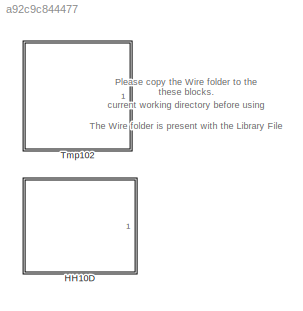
MODEL slx_a92c9c844477
KIND library
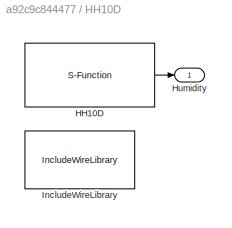
BLOCK [SubSystem] HH10D
  Ports = [0, 1]
  RequestExecContextInheritance = off
BLOCK [S-Function] HH10D/HH10D
  EnableBusSupport = off
  FunctionName = HH10D
  InitFcn = try, set_param(gcb,'FunctionName','HH10D'), end
  OpenFcn = sfunctionwizard(gcbh)
  Parameters = int8(1),1.2
  Ports = [0, 1]
  PreSaveFcn = try, set_param(gcb,'FunctionName','HH10D'), end
  SFunctionModules = HH10D_wrapper
BLOCK [Outport] HH10D/Humidity
  IconDisplay = Port number
BLOCK [Reference] HH10D/IncludeWireLibrary  REF=FunWithArduinoLib/Tmp102/IncludeWireLibrary
  Ports = []
  SourceBlock = FunWithArduinoLib/Tmp102/IncludeWireLibrary
  SourceType = S-Function Builder
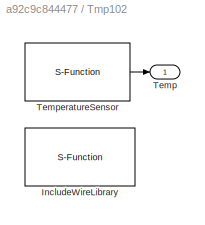
BLOCK [SubSystem] Tmp102
  Ports = [0, 1]
  RequestExecContextInheritance = off
BLOCK [S-Function] Tmp102/IncludeWireLibrary
  EnableBusSupport = off
  FunctionName = IncludeWireLib
  InitFcn = try, set_param(gcb,'FunctionName','IncludeWireLib'), end
  OpenFcn = sfunctionwizard(gcbh)
  Ports = []
  PreSaveFcn = try, set_param(gcb,'FunctionName','IncludeWireLib'), end
  SFunctionModules = IncludeWireLib_wrapper
BLOCK [Outport] Tmp102/Temp
  IconDisplay = Port number
BLOCK [S-Function] Tmp102/TemperatureSensor
  EnableBusSupport = off
  FunctionName = Tmp102
  InitFcn = try, set_param(gcb,'FunctionName','Tmp102'), end
  OpenFcn = sfunctionwizard(gcbh)
  Parameters = int8(72),0.1
  Ports = [0, 1]
  PreSaveFcn = try, set_param(gcb,'FunctionName','Tmp102'), end
  SFunctionModules = Tmp102_wrapper
ANNOTATION (root): Please copy the Wire folder to the current working directory before using these blocks. The Wire folder is present with the Library File
LINE HH10D/HH10D:1 -> HH10D/Humidity:1
LINE Tmp102/TemperatureSensor:1 -> Tmp102/Temp:1
